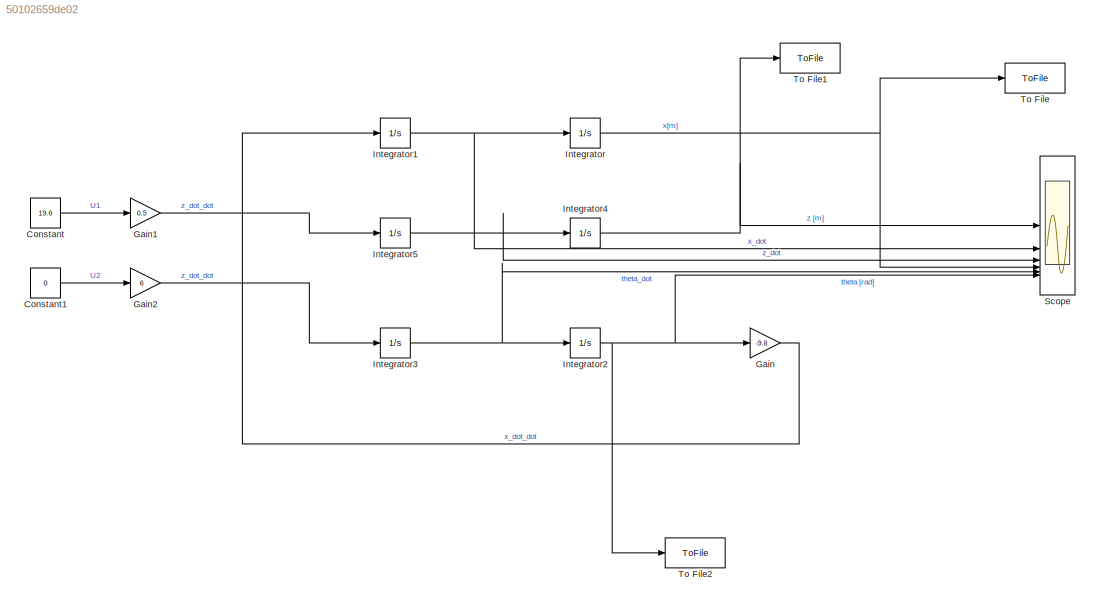
MODEL slx_50102659de02
KIND model
CONFIG AbsTol = auto
CONFIG EnableMultiTasking = off
CONFIG FixedStep = auto
CONFIG MaxStep = auto
CONFIG MinStep = auto
CONFIG RelTol = 1e-3
CONFIG SampleTimeConstraint = Unconstrained
CONFIG SolverName = VariableStepAuto
CONFIG StartTime = 0.0
CONFIG StopTime = 100.0
BLOCK [Constant] Constant
  Value = 19.6
BLOCK [Constant] Constant1
  Value = 0
BLOCK [Gain] Gain
  Gain = -9.8
BLOCK [Gain] Gain1
  Gain = 0.5
BLOCK [Gain] Gain2
  Gain = 6
BLOCK [Integrator] Integrator
BLOCK [Integrator] Integrator1
BLOCK [Integrator] Integrator2
  InitialCondition = (4/180)*pi
BLOCK [Integrator] Integrator3
BLOCK [Integrator] Integrator4
BLOCK [Integrator] Integrator5
BLOCK [Scope] Scope
  Floating = off
  NumInputPorts = 6
  ScopeSpecificationString = Simulink.scopes.TimeScopeBlockCfg('CurrentConfiguration', extmgr.ConfigurationSet(extmgr.Configuration('Core','General UI',true),extmgr.Configuration('Core','Source UI',true),extmgr.Configuration('Sources','WiredSimulink',true),extmgr.Configuration('Visuals','Time Domain',true,'SerializedDisplays',{struct('MinYLimReal','-99.73451','MaxYLimReal','555.52606','YLabelReal','','MinYLimMag','0.00000','M...<+1546ch>
BLOCK [ToFile] To File
  Filename = x_3
  SaveFormat = Timeseries
BLOCK [ToFile] To File1
  Filename = z_3
  SaveFormat = Timeseries
BLOCK [ToFile] To File2
  Filename = theta_3
  SaveFormat = Timeseries
LINE Constant1:1 -> Gain2:1
LINE Constant:1 -> Gain1:1
LINE Gain1:1 -> Integrator5:1
LINE Gain2:1 -> Integrator3:1
LINE Gain:1 -> Integrator1:1
NET Integrator1:1 -> Integrator:1, Scope:2
NET Integrator2:1 -> Gain:1, Scope:6, To File2:1
NET Integrator3:1 -> Integrator2:1, Scope:5
NET Integrator4:1 -> Scope:1, To File1:1
NET Integrator5:1 -> Integrator4:1, Scope:3
NET Integrator:1 -> Scope:4, To File:1
note: NET lines group one-source signal fan-out (src -> all destinations, sorted); 1:1 wires keep LINE
